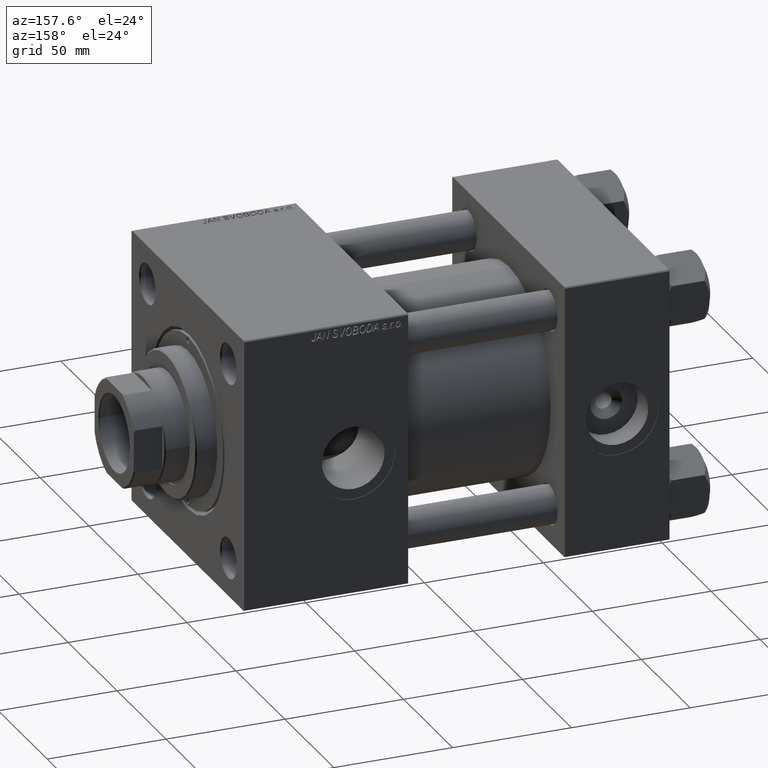
[diagram: clean part render]
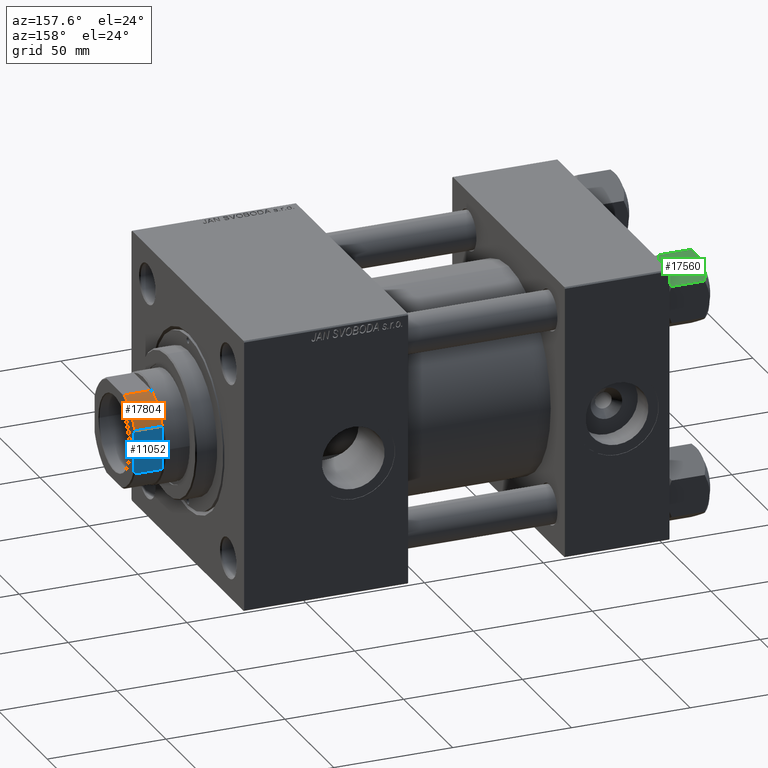
[diagram: same view with three faces highlighted in distinct colors, each labeled with its STEP entity id]
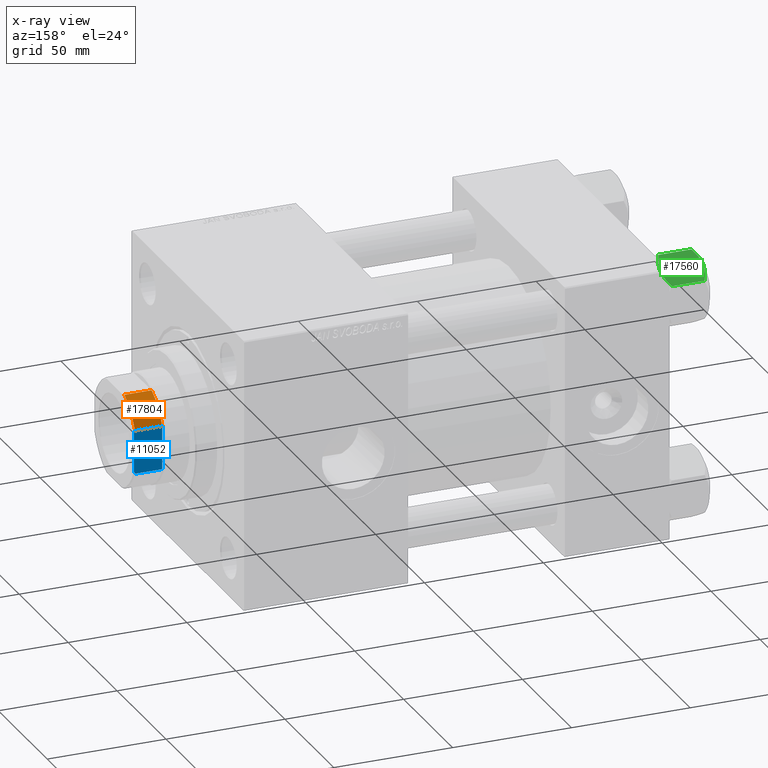
[diagram: x-ray of the same camera — body ghosted, the three highlighted faces saturated]
A machine part, auxiliary view with three faces highlighted in distinct colors.
The next image is the same camera in x-ray (body ghosted, the three faces saturated) — at least one of them is partly hidden behind the body in this view.
Their STEP definitions:

[orange] entity #17804 — the highlighted cylindrical surface (partial cylindrical patch) has radius 22 mm, axis along (1, 0, 0).
#496 = FACE_OUTER_BOUND ( 'NONE', #49917, .T. ) ;
#4187 = CARTESIAN_POINT ( 'NONE',  ( -9.165151389911676105, -20.00000000000000000, 154.0000000000000284 ) ) ;
#4263 = DIRECTION ( 'NONE',  ( -0.000000000000000000, -0.000000000000000000, 1.000000000000000000 ) ) ;
#5884 = DIRECTION ( 'NONE',  ( -0.000000000000000000, -0.000000000000000000, -1.000000000000000000 ) ) ;
#8011 = LINE ( 'NONE', #16543, #37505 ) ;
#8551 = ORIENTED_EDGE ( 'NONE', *, *, #15914, .F. ) ;
#11124 = DIRECTION ( 'NONE',  ( 0.000000000000000000, 0.000000000000000000, 1.000000000000000000 ) ) ;
#12925 = CARTESIAN_POINT ( 'NONE',  ( -20.00000000000000000, -9.165151389911677882, -0.001000000000001000089 ) ) ;
#14344 = CARTESIAN_POINT ( 'NONE',  ( -20.00000000000000000, -9.165151389911677882, 154.0000000000000284 ) ) ;
#15269 = DIRECTION ( 'NONE',  ( -0.000000000000000000, -0.000000000000000000, 1.000000000000000000 ) ) ;
#15914 = EDGE_CURVE ( 'NONE', #51081, #32938, #32961, .T. ) ;
#16543 = CARTESIAN_POINT ( 'NONE',  ( -9.165151389911676105, -20.00000000000000000, -0.001000000000001000089 ) ) ;
#17804 = ADVANCED_FACE ( 'NONE', ( #496 ), #36827, .T. ) ;
#21142 = AXIS2_PLACEMENT_3D ( 'NONE', #42478, #5884, #30711 ) ;
#23959 = DIRECTION ( 'NONE',  ( 1.000000000000000000, 0.000000000000000000, 0.000000000000000000 ) ) ;
#24199 = VERTEX_POINT ( 'NONE', #4187 ) ;
#24561 = DIRECTION ( 'NONE',  ( 1.000000000000000000, 0.000000000000000000, 0.000000000000000000 ) ) ;
#24675 = VECTOR ( 'NONE', #33490, 1000.000000000000000 ) ;
#27877 = AXIS2_PLACEMENT_3D ( 'NONE', #31427, #11124, #23959 ) ;
#29669 = CIRCLE ( 'NONE', #21142, 22.00000000000000000 ) ;
#29899 = VERTEX_POINT ( 'NONE', #33666 ) ;
#30033 = ORIENTED_EDGE ( 'NONE', *, *, #33021, .T. ) ;
#30711 = DIRECTION ( 'NONE',  ( 1.000000000000000000, 0.000000000000000000, 0.000000000000000000 ) ) ;
#31427 = CARTESIAN_POINT ( 'NONE',  ( 0.000000000000000000, 0.000000000000000000, 154.0000000000000000 ) ) ;
#32938 = VERTEX_POINT ( 'NONE', #50177 ) ;
#32961 = LINE ( 'NONE', #12925, #24675 ) ;
#33021 = EDGE_CURVE ( 'NONE', #51081, #24199, #50089, .T. ) ;
#33490 = DIRECTION ( 'NONE',  ( -0.000000000000000000, -0.000000000000000000, 1.000000000000000000 ) ) ;
#33666 = CARTESIAN_POINT ( 'NONE',  ( -9.165151389911676105, -20.00000000000000000, 165.5000000000000853 ) ) ;
#35478 = EDGE_CURVE ( 'NONE', #29899, #32938, #29669, .T. ) ;
#36827 = CYLINDRICAL_SURFACE ( 'NONE', #40919, 22.00000000000000000 ) ;
#37505 = VECTOR ( 'NONE', #4263, 1000.000000000000000 ) ;
#40919 = AXIS2_PLACEMENT_3D ( 'NONE', #49396, #15269, #24561 ) ;
#42478 = CARTESIAN_POINT ( 'NONE',  ( 0.000000000000000000, 0.000000000000000000, 165.5000000000000853 ) ) ;
#43713 = EDGE_CURVE ( 'NONE', #24199, #29899, #8011, .T. ) ;
#49396 = CARTESIAN_POINT ( 'NONE',  ( 0.000000000000000000, 0.000000000000000000, -0.001000000000001000089 ) ) ;
#49917 = EDGE_LOOP ( 'NONE', ( #52180, #49934, #8551, #30033 ) ) ;
#49934 = ORIENTED_EDGE ( 'NONE', *, *, #35478, .T. ) ;
#50089 = CIRCLE ( 'NONE', #27877, 22.00000000000002132 ) ;
#50177 = CARTESIAN_POINT ( 'NONE',  ( -20.00000000000000000, -9.165151389911677882, 165.5000000000000853 ) ) ;
#51081 = VERTEX_POINT ( 'NONE', #14344 ) ;
#52180 = ORIENTED_EDGE ( 'NONE', *, *, #43713, .T. ) ;

[blue] entity #11052 — the highlighted planar face has unit normal (0, -1, -0).
#139 = ORIENTED_EDGE ( 'NONE', *, *, #14976, .T. ) ;
#1389 = EDGE_CURVE ( 'NONE', #28317, #8819, #40262, .T. ) ;
#3144 = AXIS2_PLACEMENT_3D ( 'NONE', #19541, #31275, #31547 ) ;
#3234 = FACE_OUTER_BOUND ( 'NONE', #17830, .T. ) ;
#4805 = CARTESIAN_POINT ( 'NONE',  ( -20.00000000000000000, -9.165151389911677882, 165.5000000000000853 ) ) ;
#6625 = ORIENTED_EDGE ( 'NONE', *, *, #33641, .T. ) ;
#6886 = ORIENTED_EDGE ( 'NONE', *, *, #50883, .T. ) ;
#8059 = VECTOR ( 'NONE', #35712, 1000.000000000000000 ) ;
#8819 = VERTEX_POINT ( 'NONE', #17399 ) ;
#11052 = ADVANCED_FACE ( 'NONE', ( #3234 ), #14970, .F. ) ;
#12130 = CARTESIAN_POINT ( 'NONE',  ( -20.00000000000000355, 20.00000000000000000, 154.0000000000000000 ) ) ;
#12925 = CARTESIAN_POINT ( 'NONE',  ( -20.00000000000000000, -9.165151389911677882, -0.001000000000001000089 ) ) ;
#13645 = ORIENTED_EDGE ( 'NONE', *, *, #29976, .F. ) ;
#14150 = CARTESIAN_POINT ( 'NONE',  ( -19.99999999999999645, 9.165151389911683211, 165.5000000000000853 ) ) ;
#14344 = CARTESIAN_POINT ( 'NONE',  ( -20.00000000000000000, -9.165151389911677882, 154.0000000000000284 ) ) ;
#14900 = VERTEX_POINT ( 'NONE', #23382 ) ;
#14970 = PLANE ( 'NONE',  #3144 ) ;
#14976 = EDGE_CURVE ( 'NONE', #41399, #51081, #24952, .T. ) ;
#15914 = EDGE_CURVE ( 'NONE', #51081, #32938, #32961, .T. ) ;
#17399 = CARTESIAN_POINT ( 'NONE',  ( -20.00000000000000000, -7.889866919030001924, 166.0000000000000000 ) ) ;
#17830 = EDGE_LOOP ( 'NONE', ( #37767, #6625, #51457, #6886, #13645, #139 ) ) ;
#18172 = CARTESIAN_POINT ( 'NONE',  ( -20.00000000000000000, 8.743570658524443928, 165.6756296011925258 ) ) ;
#18567 = B_SPLINE_CURVE_WITH_KNOTS ( 'NONE', 3,
 ( #38469, #26958, #18172, #14150 ),
 .UNSPECIFIED., .F., .F.,
 ( 4, 4 ),
 ( 0.000000000000000000, 0.001369799431183961035 ),
 .UNSPECIFIED. ) ;
#19541 = CARTESIAN_POINT ( 'NONE',  ( -20.00000000000000355, 20.00000000000000000, 166.0000000000000000 ) ) ;
#20938 = VECTOR ( 'NONE', #34975, 1000.000000000000000 ) ;
#21120 = CARTESIAN_POINT ( 'NONE',  ( -20.00000000000000000, -8.743570658524440375, 165.6756296011925258 ) ) ;
#23382 = CARTESIAN_POINT ( 'NONE',  ( -19.99999999999999645, 9.165151389911683211, 165.5000000000000853 ) ) ;
#24675 = VECTOR ( 'NONE', #33490, 1000.000000000000000 ) ;
#24952 = LINE ( 'NONE', #12130, #45976 ) ;
#26958 = CARTESIAN_POINT ( 'NONE',  ( -20.00000000000000000, 8.318618722654573361, 165.8426607129352703 ) ) ;
#28317 = VERTEX_POINT ( 'NONE', #43644 ) ;
#29976 = EDGE_CURVE ( 'NONE', #41399, #14900, #47019, .T. ) ;
#31275 = DIRECTION ( 'NONE',  ( 1.000000000000000000, 1.734723475976806848E-16, -0.000000000000000000 ) ) ;
#31547 = DIRECTION ( 'NONE',  ( -1.734723475976806848E-16, 1.000000000000000000, 0.000000000000000000 ) ) ;
#32501 = CARTESIAN_POINT ( 'NONE',  ( -20.00000000000000355, 20.00000000000000000, 166.0000000000000000 ) ) ;
#32938 = VERTEX_POINT ( 'NONE', #50177 ) ;
#32961 = LINE ( 'NONE', #12925, #24675 ) ;
#33490 = DIRECTION ( 'NONE',  ( -0.000000000000000000, -0.000000000000000000, 1.000000000000000000 ) ) ;
#33641 = EDGE_CURVE ( 'NONE', #32938, #8819, #35112, .T. ) ;
#34027 = CARTESIAN_POINT ( 'NONE',  ( -19.99999999999999645, 9.165151389911681434, 154.0000000000000284 ) ) ;
#34975 = DIRECTION ( 'NONE',  ( -0.000000000000000000, -0.000000000000000000, 1.000000000000000000 ) ) ;
#35112 = B_SPLINE_CURVE_WITH_KNOTS ( 'NONE', 3,
 ( #4805, #21120, #49966, #37387 ),
 .UNSPECIFIED., .F., .F.,
 ( 4, 4 ),
 ( 0.000000000000000000, 0.001369799431183950193 ),
 .UNSPECIFIED. ) ;
#35712 = DIRECTION ( 'NONE',  ( 1.734723475976807094E-16, -1.000000000000000000, 0.000000000000000000 ) ) ;
#37387 = CARTESIAN_POINT ( 'NONE',  ( -20.00000000000000000, -7.889866919030001924, 166.0000000000000000 ) ) ;
#37767 = ORIENTED_EDGE ( 'NONE', *, *, #15914, .T. ) ;
#38469 = CARTESIAN_POINT ( 'NONE',  ( -20.00000000000000000, 7.889866919029994818, 166.0000000000000000 ) ) ;
#40262 = LINE ( 'NONE', #32501, #8059 ) ;
#41399 = VERTEX_POINT ( 'NONE', #34027 ) ;
#43644 = CARTESIAN_POINT ( 'NONE',  ( -20.00000000000000000, 7.889866919029994818, 166.0000000000000000 ) ) ;
#45514 = DIRECTION ( 'NONE',  ( 1.734723475976807094E-16, -1.000000000000000000, 0.000000000000000000 ) ) ;
#45976 = VECTOR ( 'NONE', #45514, 1000.000000000000000 ) ;
#46759 = CARTESIAN_POINT ( 'NONE',  ( -19.99999999999999645, 9.165151389911683211, -0.001000000000001000089 ) ) ;
#47019 = LINE ( 'NONE', #46759, #20938 ) ;
#49966 = CARTESIAN_POINT ( 'NONE',  ( -20.00000000000000000, -8.318618722654584019, 165.8426607129352988 ) ) ;
#50177 = CARTESIAN_POINT ( 'NONE',  ( -20.00000000000000000, -9.165151389911677882, 165.5000000000000853 ) ) ;
#50883 = EDGE_CURVE ( 'NONE', #28317, #14900, #18567, .T. ) ;
#51081 = VERTEX_POINT ( 'NONE', #14344 ) ;
#51457 = ORIENTED_EDGE ( 'NONE', *, *, #1389, .F. ) ;

[green] entity #17560 — the highlighted planar face has unit normal (0, -0.5, -0.866).
#362 = CARTESIAN_POINT ( 'NONE',  ( 11.71500000000000519, 6.763658403556469523, 0.000000000000000000 ) ) ;
#661 = DIRECTION ( 'NONE',  ( -0.4999999999999999445, 0.8660254037844387076, 0.000000000000000000 ) ) ;
#664 = ORIENTED_EDGE ( 'NONE', *, *, #44338, .F. ) ;
#1814 = EDGE_CURVE ( 'NONE', #3338, #18425, #28430, .T. ) ;
#2076 = VECTOR ( 'NONE', #4119, 1000.000000000000000 ) ;
#2303 = VERTEX_POINT ( 'NONE', #8267 ) ;
#2578 = EDGE_CURVE ( 'NONE', #15172, #3338, #42447, .T. ) ;
#2672 = DIRECTION ( 'NONE',  ( -0.000000000000000000, -0.000000000000000000, 1.000000000000000000 ) ) ;
#3338 = VERTEX_POINT ( 'NONE', #38664 ) ;
#3863 = ORIENTED_EDGE ( 'NONE', *, *, #2578, .F. ) ;
#4119 = DIRECTION ( 'NONE',  ( -0.000000000000000000, -0.000000000000000000, 1.000000000000000000 ) ) ;
#4299 = B_SPLINE_CURVE_WITH_KNOTS ( 'NONE', 3,
 ( #40419, #52725, #16109, #32406, #48711, #19609, #15578, #31878 ),
 .UNSPECIFIED., .F., .F.,
 ( 4, 2, 2, 4 ),
 ( 0.007890825462474437835, 0.01181022244528555538, 0.01376992093669111156, 0.01572961942809666946 ),
 .UNSPECIFIED. ) ;
#4726 = CARTESIAN_POINT ( 'NONE',  ( 11.71500000000000519, 6.763658403556469523, 0.000000000000000000 ) ) ;
#5248 = CARTESIAN_POINT ( 'NONE',  ( 13.99051971937273464, 2.822342635978018599, -17.26828031537187513 ) ) ;
#7480 = EDGE_CURVE ( 'NONE', #40117, #38434, #41334, .T. ) ;
#7593 = VECTOR ( 'NONE', #20582, 999.9999999999998863 ) ;
#7850 = CARTESIAN_POINT ( 'NONE',  ( 7.810000000000001386, 13.52731680711293905, -16.00000000000000000 ) ) ;
#8144 = CARTESIAN_POINT ( 'NONE',  ( 10.06459418565413166, 9.622245127110598872, -17.61639331488792948 ) ) ;
#8195 = CARTESIAN_POINT ( 'NONE',  ( 15.52647173767732980, 0.1619957022865022300, -2.000000000000000000 ) ) ;
#8267 = CARTESIAN_POINT ( 'NONE',  ( 7.903528262322689457, 13.36532110482641045, -16.00000000000000000 ) ) ;
#8683 = VERTEX_POINT ( 'NONE', #16594 ) ;
#9073 = CARTESIAN_POINT ( 'NONE',  ( 7.810000000000001386, 13.52731680711293905, -1.999999999999998224 ) ) ;
#9462 = CARTESIAN_POINT ( 'NONE',  ( 15.62000000000000455, -1.379485931020374819E-15, -1.999999999999998224 ) ) ;
#12281 = LINE ( 'NONE', #9073, #7593 ) ;
#12387 = CARTESIAN_POINT ( 'NONE',  ( 15.62000000000000455, -1.379485931020374819E-15, -18.00000000000000000 ) ) ;
#12866 = B_SPLINE_CURVE_WITH_KNOTS ( 'NONE', 3,
 ( #45860, #47361, #18523, #5248, #21022, #37823, #14242, #41578 ),
 .UNSPECIFIED., .F., .F.,
 ( 4, 2, 2, 4 ),
 ( 0.007890825462474394467, 0.01181022244528549814, 0.01376992093669104911, 0.01572961942809660008 ),
 .UNSPECIFIED. ) ;
#12909 = FACE_OUTER_BOUND ( 'NONE', #40811, .T. ) ;
#13541 = CARTESIAN_POINT ( 'NONE',  ( 13.04337073483128506, 4.462852799541082938, -0.2430846701012968347 ) ) ;
#13565 = EDGE_CURVE ( 'NONE', #8683, #16160, #23249, .T. ) ;
#14242 = CARTESIAN_POINT ( 'NONE',  ( 15.22736220980734778, 0.6800686015852424049, -16.29368822085855584 ) ) ;
#15172 = VERTEX_POINT ( 'NONE', #23056 ) ;
#15578 = CARTESIAN_POINT ( 'NONE',  ( 8.202637790192646605, 12.84724820552771085, -1.706311779141445717 ) ) ;
#15962 = ORIENTED_EDGE ( 'NONE', *, *, #24346, .F. ) ;
#16109 = CARTESIAN_POINT ( 'NONE',  ( 10.40215497533437450, 9.037572688741345672, -0.1971866459924547788 ) ) ;
#16160 = VERTEX_POINT ( 'NONE', #47635 ) ;
#16342 = EDGE_CURVE ( 'NONE', #19270, #16160, #12281, .T. ) ;
#16420 = CARTESIAN_POINT ( 'NONE',  ( 8.502393313253767460, 12.32805640973646710, -16.58801072835993295 ) ) ;
#16594 = CARTESIAN_POINT ( 'NONE',  ( 7.810000000000000497, 13.52731680711293905, -16.00000000000000000 ) ) ;
#16675 = CARTESIAN_POINT ( 'NONE',  ( 7.903528262322689457, 13.36532110482641045, -16.00000000000000000 ) ) ;
#17221 = CARTESIAN_POINT ( 'NONE',  ( 7.810000000000001386, 13.52731680711293905, -1.999999999999998224 ) ) ;
#17560 = ADVANCED_FACE ( 'NONE', ( #12909 ), #37744, .F. ) ;
#17734 = DIRECTION ( 'NONE',  ( -0.8660254037844387076, -0.4999999999999999445, 0.000000000000000000 ) ) ;
#18425 = VERTEX_POINT ( 'NONE', #9462 ) ;
#18445 = CARTESIAN_POINT ( 'NONE',  ( 7.810000000000001386, 13.52731680711293905, -18.00000000000000000 ) ) ;
#18523 = CARTESIAN_POINT ( 'NONE',  ( 13.02784502466562877, 4.489744118371592485, -17.80281335400753662 ) ) ;
#18745 = AXIS2_PLACEMENT_3D ( 'NONE', #33472, #17734, #25206 ) ;
#19270 = VERTEX_POINT ( 'NONE', #28120 ) ;
#19609 = CARTESIAN_POINT ( 'NONE',  ( 8.506059550806622127, 12.32170630002230283, -1.434462921875002683 ) ) ;
#19921 = CARTESIAN_POINT ( 'NONE',  ( 11.38181071908714692, 7.340759166634869715, -17.99999999999998224 ) ) ;
#20455 = ORIENTED_EDGE ( 'NONE', *, *, #7480, .F. ) ;
#20582 = DIRECTION ( 'NONE',  ( -0.4999999999999999445, 0.8660254037844387076, 0.000000000000000000 ) ) ;
#21022 = CARTESIAN_POINT ( 'NONE',  ( 14.30591678195075467, 2.276058899034909544, -17.05261278537717828 ) ) ;
#21312 = CARTESIAN_POINT ( 'NONE',  ( 14.92760668674625002, 1.199260397376449072, -1.411989271640066601 ) ) ;
#21631 = DIRECTION ( 'NONE',  ( 0.4999999999999999445, -0.8660254037844387076, 0.000000000000000000 ) ) ;
#22160 = CARTESIAN_POINT ( 'NONE',  ( 7.810000000000001386, 13.52731680711293905, -16.00000000000000000 ) ) ;
#22619 = EDGE_CURVE ( 'NONE', #8683, #2303, #32160, .T. ) ;
#23056 = CARTESIAN_POINT ( 'NONE',  ( 15.52647173767731736, 0.1619957022865213259, -16.00000000000000000 ) ) ;
#23249 = LINE ( 'NONE', #18445, #27154 ) ;
#24346 = EDGE_CURVE ( 'NONE', #25719, #15172, #12866, .T. ) ;
#24518 = ORIENTED_EDGE ( 'NONE', *, *, #46625, .F. ) ;
#25034 = CARTESIAN_POINT ( 'NONE',  ( 14.31545111198821552, 2.259544954993893295, -0.9142282604026940040 ) ) ;
#25206 = DIRECTION ( 'NONE',  ( 0.4999999999999998890, -0.8660254037844385966, 0.000000000000000000 ) ) ;
#25719 = VERTEX_POINT ( 'NONE', #36284 ) ;
#27154 = VECTOR ( 'NONE', #2672, 1000.000000000000000 ) ;
#28120 = CARTESIAN_POINT ( 'NONE',  ( 7.903528262322677023, 13.36532110482643176, -2.000000000000000000 ) ) ;
#28430 = LINE ( 'NONE', #12387, #2076 ) ;
#28447 = EDGE_CURVE ( 'NONE', #38434, #19270, #4299, .T. ) ;
#28879 = ORIENTED_EDGE ( 'NONE', *, *, #22619, .F. ) ;
#29039 = CARTESIAN_POINT ( 'NONE',  ( 12.38621571200405924, 5.601078687526928945, -0.05089381635301384876 ) ) ;
#29497 = LINE ( 'NONE', #17221, #48728 ) ;
#29835 = CARTESIAN_POINT ( 'NONE',  ( 12.04818928091285812, 6.186557640478062225, 2.165016213181991667E-15 ) ) ;
#29999 = ORIENTED_EDGE ( 'NONE', *, *, #13565, .T. ) ;
#31626 = ORIENTED_EDGE ( 'NONE', *, *, #28447, .F. ) ;
#31878 = CARTESIAN_POINT ( 'NONE',  ( 7.903528262322677023, 13.36532110482643176, -2.000000000000000000 ) ) ;
#32160 = LINE ( 'NONE', #7850, #42674 ) ;
#32406 = CARTESIAN_POINT ( 'NONE',  ( 9.439480280627263298, 10.70497417113492489, -0.7317196846281137645 ) ) ;
#33472 = CARTESIAN_POINT ( 'NONE',  ( 7.810000000000001386, 13.52731680711293905, -18.00000000000000000 ) ) ;
#33834 = CARTESIAN_POINT ( 'NONE',  ( 15.52647173767732980, 0.1619957022865022300, -2.000000000000000000 ) ) ;
#34512 = VECTOR ( 'NONE', #21631, 999.9999999999998863 ) ;
#36284 = CARTESIAN_POINT ( 'NONE',  ( 11.71499999999999453, 6.763658403556462417, -18.00000000000000000 ) ) ;
#36526 = ORIENTED_EDGE ( 'NONE', *, *, #16342, .F. ) ;
#36713 = CARTESIAN_POINT ( 'NONE',  ( 11.71499999999999453, 6.763658403556462417, -18.00000000000000000 ) ) ;
#37235 = CARTESIAN_POINT ( 'NONE',  ( 11.04378428799595468, 7.926238119586002995, -17.94910618364697541 ) ) ;
#37744 = PLANE ( 'NONE',  #18745 ) ;
#37823 = CARTESIAN_POINT ( 'NONE',  ( 14.92394044919337937, 1.205610507090647987, -16.56553707812500065 ) ) ;
#38434 = VERTEX_POINT ( 'NONE', #362 ) ;
#38664 = CARTESIAN_POINT ( 'NONE',  ( 15.62000000000000455, -1.379485931020374819E-15, -16.00000000000000000 ) ) ;
#40117 = VERTEX_POINT ( 'NONE', #8195 ) ;
#40419 = CARTESIAN_POINT ( 'NONE',  ( 11.71500000000000519, 6.763658403556469523, 0.000000000000000000 ) ) ;
#40811 = EDGE_LOOP ( 'NONE', ( #28879, #29999, #36526, #31626, #20455, #24518, #50344, #3863, #15962, #664 ) ) ;
#41334 = B_SPLINE_CURVE_WITH_KNOTS ( 'NONE', 3,
 ( #33834, #21312, #25034, #50156, #13541, #29039, #29835, #4726 ),
 .UNSPECIFIED., .F., .F.,
 ( 4, 2, 2, 4 ),
 ( 4.472842641970240738E-07, 0.003945636373369317863, 0.005918230917921878283, 0.007890825462474437835 ),
 .UNSPECIFIED. ) ;
#41578 = CARTESIAN_POINT ( 'NONE',  ( 15.52647173767731736, 0.1619957022865213259, -16.00000000000000000 ) ) ;
#42447 = LINE ( 'NONE', #22160, #34512 ) ;
#42674 = VECTOR ( 'NONE', #48202, 999.9999999999998863 ) ;
#44338 = EDGE_CURVE ( 'NONE', #2303, #25719, #47017, .T. ) ;
#44498 = CARTESIAN_POINT ( 'NONE',  ( 9.114548888011798411, 11.26777185211902221, -17.08577173959729478 ) ) ;
#45860 = CARTESIAN_POINT ( 'NONE',  ( 11.71499999999999453, 6.763658403556462417, -18.00000000000000000 ) ) ;
#46625 = EDGE_CURVE ( 'NONE', #18425, #40117, #29497, .T. ) ;
#47017 = B_SPLINE_CURVE_WITH_KNOTS ( 'NONE', 3,
 ( #16675, #16420, #44498, #8144, #48242, #37235, #19921, #36713 ),
 .UNSPECIFIED., .F., .F.,
 ( 4, 2, 2, 4 ),
 ( 4.472842641813524291E-07, 0.003945636373369291842, 0.005918230917921843588, 0.007890825462474394467 ),
 .UNSPECIFIED. ) ;
#47361 = CARTESIAN_POINT ( 'NONE',  ( 12.37702203890362362, 5.617002596445057172, -17.99999999999999645 ) ) ;
#47635 = CARTESIAN_POINT ( 'NONE',  ( 7.810000000000000497, 13.52731680711293905, -1.999999999999998224 ) ) ;
#48202 = DIRECTION ( 'NONE',  ( 0.4999999999999999445, -0.8660254037844387076, 0.000000000000000000 ) ) ;
#48242 = CARTESIAN_POINT ( 'NONE',  ( 10.38662926516872886, 9.064464007571846338, -17.75691532989869614 ) ) ;
#48711 = CARTESIAN_POINT ( 'NONE',  ( 9.124083218049239719, 11.25125790807803483, -0.9473872146228128344 ) ) ;
#48728 = VECTOR ( 'NONE', #661, 999.9999999999998863 ) ;
#50156 = CARTESIAN_POINT ( 'NONE',  ( 13.36540581434588049, 3.905071680002324630, -0.3836066851120584764 ) ) ;
#50344 = ORIENTED_EDGE ( 'NONE', *, *, #1814, .F. ) ;
#52725 = CARTESIAN_POINT ( 'NONE',  ( 11.05297796109638320, 7.910314210667883650, 2.165016213181991667E-15 ) ) ;